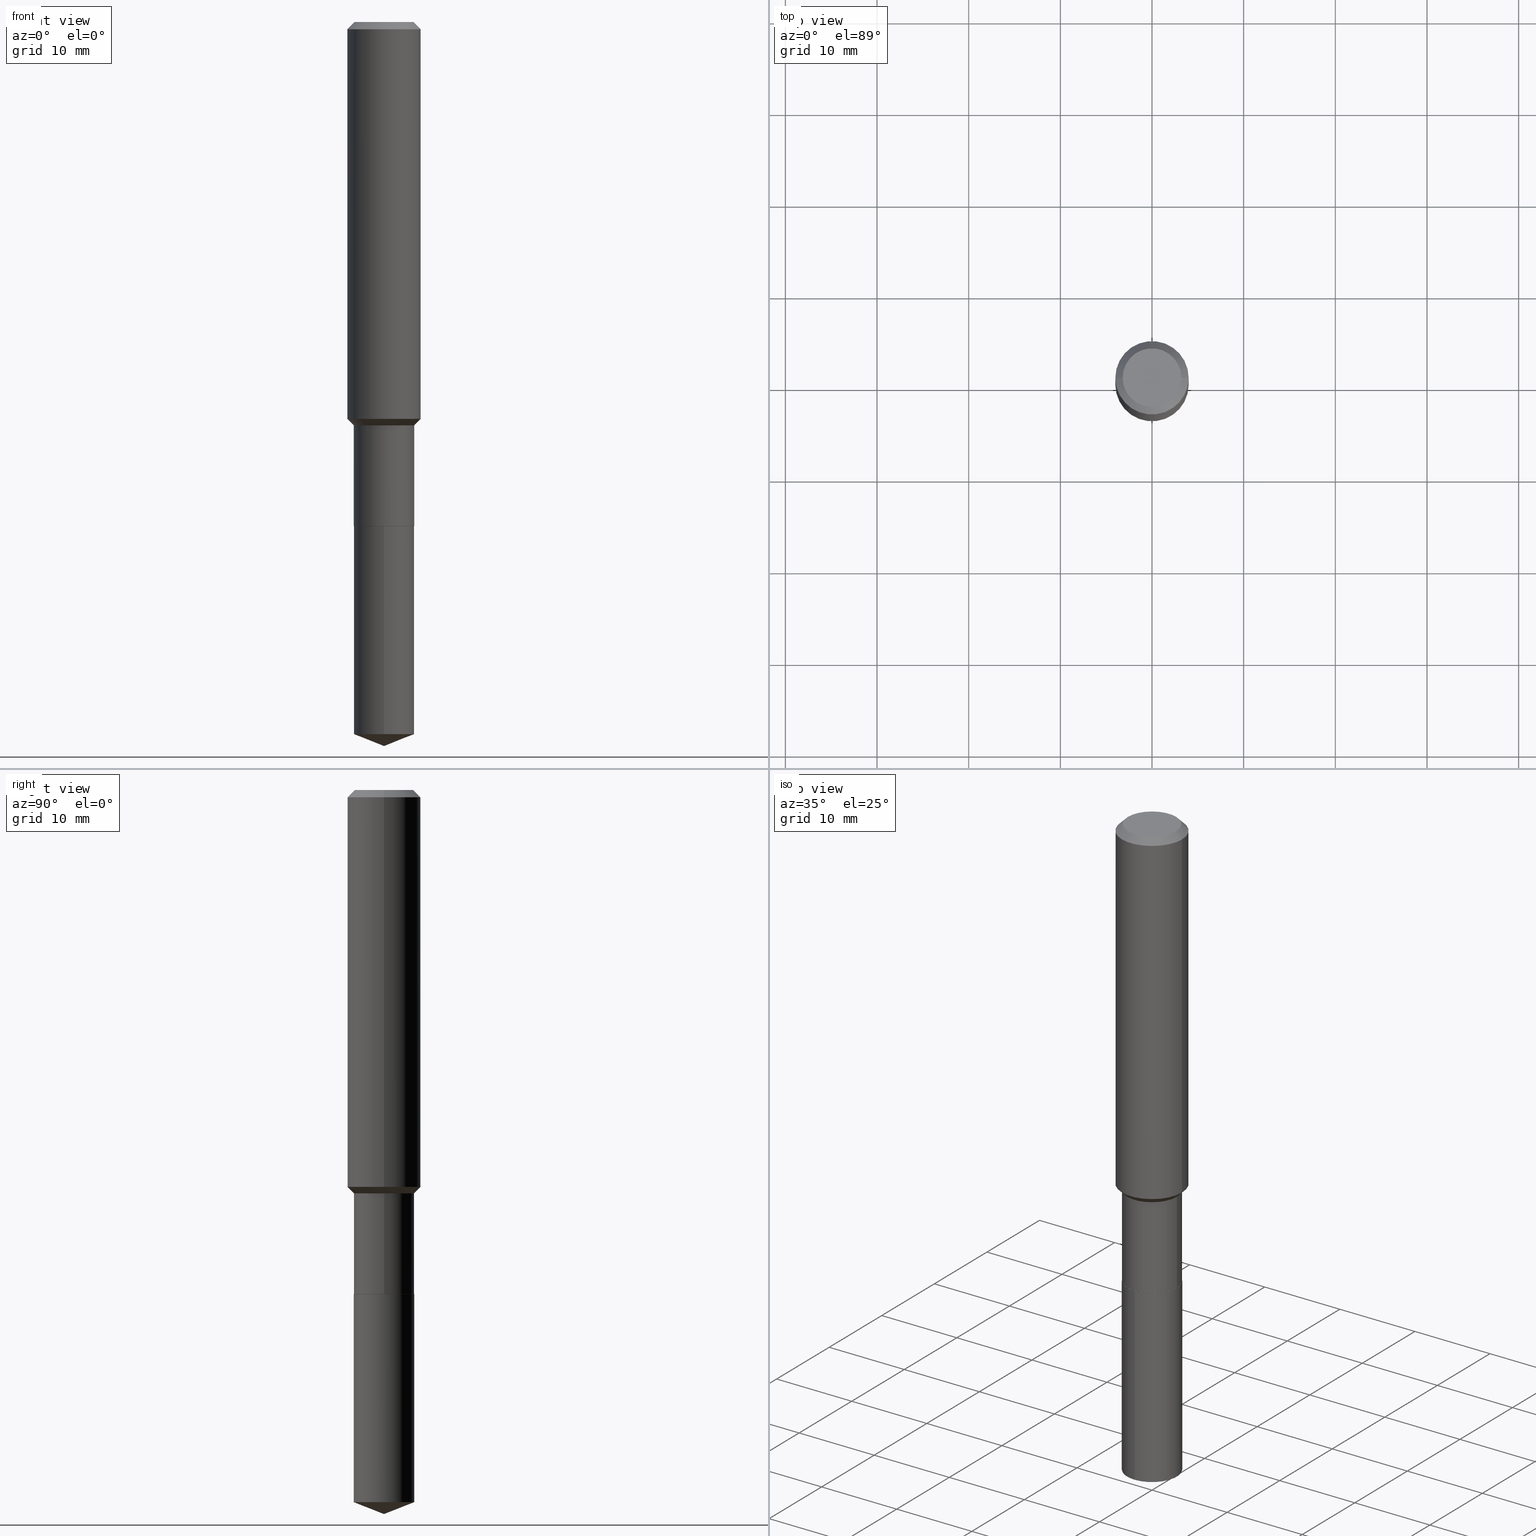
[diagram: canonical four-view strip — front | top / right | iso, engineering-drawing reading convention]
A machine part, canonical four-view strip (front | top / right | iso — engineering-drawing reading convention). The complete STEP part file that produces these views, byte-faithful:
ISO-10303-21;
HEADER;
FILE_DESCRIPTION (( 'STEP AP203' ),
    '1' );
FILE_NAME ('66436.STEP',
    '2024-04-24T22:44:05',
    ( '' ),
    ( '' ),
    'SwSTEP 2.0',
    'SolidWorks 2023',
    '' );
FILE_SCHEMA (( 'CONFIG_CONTROL_DESIGN' ));
ENDSEC;

DATA;
#1 = EDGE_CURVE ( 'NONE', #54, #28, #373, .T. ) ;
#2 = CARTESIAN_POINT ( 'NONE',  ( -8.866673825358101725E-28, 1.266088013143874858E-13, 36.25987874015748247 ) ) ;
#3 = AXIS2_PLACEMENT_3D ( 'NONE', #337, #137, #283 ) ;
#4 = ORIENTED_EDGE ( 'NONE', *, *, #140, .T. ) ;
#5 = CC_DESIGN_PERSON_AND_ORGANIZATION_ASSIGNMENT ( #316, #204, ( #434 ) ) ;
#6 = CARTESIAN_POINT ( 'NONE',  ( -0.1298999999999999322, -5.126345553927266096E-15, -1.732600000000000362 ) ) ;
#7 = DIRECTION ( 'NONE',  ( -2.445468806185136597E-29, 3.491481338843145583E-15, 1.000000000000000000 ) ) ;
#8 = CARTESIAN_POINT ( 'NONE',  ( -9.439721640706201686E-47, 1.347742071746726764E-32, 3.860086710912459732E-18 ) ) ;
#9 = PERSON_AND_ORGANIZATION ( #426, #233 ) ;
#10 = AXIS2_PLACEMENT_3D ( 'NONE', #399, #145, #218 ) ;
#11 = AXIS2_PLACEMENT_3D ( 'NONE', #333, #149, #438 ) ;
#12 = PERSON_AND_ORGANIZATION_ROLE ( 'design_supplier' ) ;
#13 = LOCAL_TIME ( 18, 44, 5.000000000000000000, #205 ) ;
#14 = PRODUCT_DEFINITION ( 'UNKNOWN', '', #86, #200 ) ;
#15 = SECURITY_CLASSIFICATION_LEVEL ( 'unclassified' ) ;
#16 = DIRECTION ( 'NONE',  ( -2.445321399674212677E-29, 3.491692433356646244E-15, 1.000000000000000000 ) ) ;
#17 = ORIENTED_EDGE ( 'NONE', *, *, #202, .T. ) ;
#18 = VECTOR ( 'NONE', #334, 39.37007874015748143 ) ;
#19 = EDGE_CURVE ( 'NONE', #68, #51, #183, .T. ) ;
#20 = DATE_AND_TIME ( #387, #291 ) ;
#21 = ORIENTED_EDGE ( 'NONE', *, *, #314, .F. ) ;
#22 = DIRECTION ( 'NONE',  ( -2.445468806185136597E-29, 3.491481338843145583E-15, 1.000000000000000000 ) ) ;
#23 = DIRECTION ( 'NONE',  ( 1.000000000000000000, -6.982962677686267499E-15, 4.876176775795936353E-29 ) ) ;
#24 = EDGE_LOOP ( 'NONE', ( #211, #397 ) ) ;
#25 = CC_DESIGN_DATE_AND_TIME_ASSIGNMENT ( #207, #128, ( #143 ) ) ;
#26 = ORIENTED_EDGE ( 'NONE', *, *, #265, .T. ) ;
#27 = VECTOR ( 'NONE', #203, 39.37007874015748143 ) ;
#28 = VERTEX_POINT ( 'NONE', #327 ) ;
#29 = CARTESIAN_POINT ( 'NONE',  ( 7.605438617266735127E-29, -1.085986180622584034E-14, -3.110199999999999854 ) ) ;
#30 = ORIENTED_EDGE ( 'NONE', *, *, #473, .T. ) ;
#31 = FACE_OUTER_BOUND ( 'NONE', #135, .T. ) ;
#32 = ORIENTED_EDGE ( 'NONE', *, *, #414, .F. ) ;
#33 = DIRECTION ( 'NONE',  ( -2.445321399674212677E-29, 3.491692433356646244E-15, 1.000000000000000000 ) ) ;
#34 = DIRECTION ( 'NONE',  ( 1.000000000000000000, -6.982962677686265922E-15, 4.876176775795935793E-29 ) ) ;
#35 = ORIENTED_EDGE ( 'NONE', *, *, #19, .F. ) ;
#36 = CC_DESIGN_PERSON_AND_ORGANIZATION_ASSIGNMENT ( #89, #470, ( #14 ) ) ;
#37 = VECTOR ( 'NONE', #38, 39.37007874015748143 ) ;
#38 = DIRECTION ( 'NONE',  ( -0.7071067811866199593, 7.493145998870616062E-15, 0.7071067811864750752 ) ) ;
#39 = DIRECTION ( 'NONE',  ( -2.445468806185136597E-29, 3.491481338843145583E-15, 1.000000000000000000 ) ) ;
#40 = EDGE_CURVE ( 'NONE', #138, #363, #482, .T. ) ;
#41 = FACE_OUTER_BOUND ( 'NONE', #93, .T. ) ;
#42 = DIRECTION ( 'NONE',  ( 2.445321399674212117E-29, -3.491692433356646639E-15, -1.000000000000000000 ) ) ;
#43 = DIRECTION ( 'NONE',  ( -1.000000000000000000, 6.982962677686265922E-15, -4.876176775795935793E-29 ) ) ;
#44 = CIRCLE ( 'NONE', #157, 0.1260000000000000009 ) ;
#45 = CARTESIAN_POINT ( 'NONE',  ( 0.1298999999999999877, -8.465445654159088005E-15, -2.164800000000000058 ) ) ;
#46 = LINE ( 'NONE', #305, #141 ) ;
#47 = PERSON_AND_ORGANIZATION ( #426, #233 ) ;
#48 = EDGE_CURVE ( 'NONE', #54, #68, #84, .T. ) ;
#49 = AXIS2_PLACEMENT_3D ( 'NONE', #377, #217, #34 ) ;
#50 = PERSON_AND_ORGANIZATION ( #426, #233 ) ;
#51 = VERTEX_POINT ( 'NONE', #263 ) ;
#52 = ORIENTED_EDGE ( 'NONE', *, *, #376, .F. ) ;
#53 = CARTESIAN_POINT ( 'NONE',  ( -4.719860820353100843E-47, 6.738710358733633822E-33, 1.930043355456229866E-18 ) ) ;
#54 = VERTEX_POINT ( 'NONE', #139 ) ;
#55 = EDGE_CURVE ( 'NONE', #68, #54, #439, .T. ) ;
#56 = DIMENSIONAL_EXPONENTS ( 1.000000000000000000, 0.000000000000000000, 0.000000000000000000, 0.000000000000000000, 0.000000000000000000, 0.000000000000000000, 0.000000000000000000 ) ;
#57 = ORIENTED_EDGE ( 'NONE', *, *, #453, .T. ) ;
#58 = SHAPE_DEFINITION_REPRESENTATION ( #323, #331 ) ;
#59 = VECTOR ( 'NONE', #184, 39.37007874015748143 ) ;
#60 = PLANE ( 'NONE',  #49 ) ;
#61 = LINE ( 'NONE', #411, #287 ) ;
#62 = ORIENTED_EDGE ( 'NONE', *, *, #376, .T. ) ;
#63 = CARTESIAN_POINT ( 'NONE',  ( 5.295173606032675561E-29, -7.560104542997063911E-15, -2.165299999999999780 ) ) ;
#64 = EDGE_LOOP ( 'NONE', ( #178, #173, #345 ) ) ;
#65 = DIRECTION ( 'NONE',  ( -1.000000000000000000, 6.982962677686265922E-15, 0.000000000000000000 ) ) ;
#66 = DIRECTION ( 'NONE',  ( -6.982962677686266711E-15, -1.000000000000000000, 4.206078512185163024E-15 ) ) ;
#67 = DIRECTION ( 'NONE',  ( 1.000000000000000000, -6.982962677686265922E-15, 0.000000000000000000 ) ) ;
#68 = VERTEX_POINT ( 'NONE', #256 ) ;
#69 = DIRECTION ( 'NONE',  ( -6.982962677686266711E-15, -1.000000000000000000, 4.206078512185163024E-15 ) ) ;
#70 = AXIS2_PLACEMENT_3D ( 'NONE', #119, #7, #462 ) ;
#71 = ORIENTED_EDGE ( 'NONE', *, *, #265, .F. ) ;
#72 = CARTESIAN_POINT ( 'NONE',  ( -0.1575000000000000011, -1.912373863628402067E-15, -0.03150000000000019451 ) ) ;
#73 = DIRECTION ( 'NONE',  ( 1.000000000000000000, -6.982962677686263555E-15, 0.000000000000000000 ) ) ;
#74 = DIRECTION ( 'NONE',  ( 0.7071067811865472397, -2.468850131082253905E-15, 0.7071067811865477948 ) ) ;
#75 = VERTEX_POINT ( 'NONE', #296 ) ;
#76 = EDGE_CURVE ( 'NONE', #431, #68, #61, .T. ) ;
#77 = CIRCLE ( 'NONE', #351, 0.1298999999999999322 ) ;
#78 = AXIS2_PLACEMENT_3D ( 'NONE', #100, #253, #114 ) ;
#79 = DIRECTION ( 'NONE',  ( -2.445468806185136597E-29, 3.491481338843145583E-15, 1.000000000000000000 ) ) ;
#80 = CARTESIAN_POINT ( 'NONE',  ( -0.1260000000000000009, 9.348441284752484904E-16, 3.860086710906114178E-18 ) ) ;
#81 = CARTESIAN_POINT ( 'NONE',  ( -9.439721640706201686E-47, 1.347742071746726764E-32, 3.860086710912459732E-18 ) ) ;
#82 = EDGE_LOOP ( 'NONE', ( #359, #317, #310, #239 ) ) ;
#83 = CARTESIAN_POINT ( 'NONE',  ( 0.1298999999999999599, -9.070868518314457948E-16, 6.334153631758918028E-30 ) ) ;
#84 = CIRCLE ( 'NONE', #223, 0.1298999999999999877 ) ;
#85 = AXIS2_PLACEMENT_3D ( 'NONE', #448, #33, #455 ) ;
#86 = PRODUCT_DEFINITION_FORMATION_WITH_SPECIFIED_SOURCE ( 'ANY', '', #434, .NOT_KNOWN. ) ;
#87 = CALENDAR_DATE ( 2024, 24, 4 ) ;
#88 = ADVANCED_FACE ( 'NONE', ( #450 ), #447, .T. ) ;
#89 = PERSON_AND_ORGANIZATION ( #426, #233 ) ;
#90 = CALENDAR_DATE ( 2024, 24, 4 ) ;
#91 = CIRCLE ( 'NONE', #440, 0.1298999999999999877 ) ;
#92 = ADVANCED_FACE ( 'NONE', ( #101 ), #254, .T. ) ;
#93 = EDGE_LOOP ( 'NONE', ( #124, #158, #17, #487 ) ) ;
#94 = DATE_TIME_ROLE ( 'creation_date' ) ;
#95 = DIRECTION ( 'NONE',  ( 0.7071067811866199593, -2.468850131083015945E-15, 0.7071067811864750752 ) ) ;
#96 = CARTESIAN_POINT ( 'NONE',  ( 4.237019253596368185E-29, -6.049340567679635558E-15, -1.732600000000000362 ) ) ;
#97 = ORIENTED_EDGE ( 'NONE', *, *, #314, .T. ) ;
#98 = EDGE_LOOP ( 'NONE', ( #479, #30, #249 ) ) ;
#99 = CONICAL_SURFACE ( 'NONE', #370, 99.94676754584030220, 1.195550537616120623 ) ;
#100 = CARTESIAN_POINT ( 'NONE',  ( 5.295173606032675561E-29, -7.560104542997063911E-15, -2.165299999999999780 ) ) ;
#101 = FACE_OUTER_BOUND ( 'NONE', #469, .T. ) ;
#102 = EDGE_CURVE ( 'NONE', #394, #138, #339, .T. ) ;
#103 = CARTESIAN_POINT ( 'NONE',  ( -0.1575000000000000844, 1.119104808822158392E-15, -7.747322767151481189E-30 ) ) ;
#104 = ORIENTED_EDGE ( 'NONE', *, *, #336, .T. ) ;
#105 = VERTEX_POINT ( 'NONE', #401 ) ;
#106 = CARTESIAN_POINT ( 'NONE',  ( -0.1298999999999999877, -5.880854671251267548E-15, -2.164800000000000058 ) ) ;
#107 = CARTESIAN_POINT ( 'NONE',  ( 4.237019253596368185E-29, -6.049340567679635558E-15, -1.732600000000000362 ) ) ;
#108 = DIRECTION ( 'NONE',  ( 1.000000000000000000, -6.982962677686265133E-15, 0.000000000000000000 ) ) ;
#109 = AXIS2_PLACEMENT_3D ( 'NONE', #197, #161, #344 ) ;
#110 = CARTESIAN_POINT ( 'NONE',  ( 0.000000000000000000, 0.000000000000000000, 0.000000000000000000 ) ) ;
#111 = EDGE_CURVE ( 'NONE', #167, #278, #77, .T. ) ;
#112 = EDGE_LOOP ( 'NONE', ( #285, #132, #338, #177 ) ) ;
#113 = EDGE_CURVE ( 'NONE', #368, #167, #46, .T. ) ;
#114 = DIRECTION ( 'NONE',  ( 1.000000000000000000, -6.982962677686265133E-15, 0.000000000000000000 ) ) ;
#115 = DIRECTION ( 'NONE',  ( 6.982962677686265922E-15, 1.000000000000000000, -3.491692433356646639E-15 ) ) ;
#116 = CONICAL_SURFACE ( 'NONE', #109, 0.1293999999999999873, 0.7853981633975507526 ) ;
#117 = DIRECTION ( 'NONE',  ( -2.445468806185136877E-29, 3.491481338843145188E-15, 1.000000000000000000 ) ) ;
#118 = CARTESIAN_POINT ( 'NONE',  ( 5.295173606032675561E-29, -7.560104542997063911E-15, -2.165299999999999780 ) ) ;
#119 = CARTESIAN_POINT ( 'NONE',  ( 7.703226739483228723E-31, -1.099816621735597661E-16, -0.03150000000000019451 ) ) ;
#120 = DIRECTION ( 'NONE',  ( -2.445468806185136597E-29, 3.491481338843145583E-15, 1.000000000000000000 ) ) ;
#121 = CYLINDRICAL_SURFACE ( 'NONE', #133, 0.1298999999999999877 ) ;
#122 = UNCERTAINTY_MEASURE_WITH_UNIT (LENGTH_MEASURE( 1.000000000000000082E-05 ), #136, 'distance_accuracy_value', 'NONE');
#123 = CARTESIAN_POINT ( 'NONE',  ( 7.703226739483228723E-31, -1.099816621735597661E-16, -0.03150000000000019451 ) ) ;
#124 = ORIENTED_EDGE ( 'NONE', *, *, #398, .F. ) ;
#125 = APPLICATION_CONTEXT ( 'configuration controlled 3d designs of mechanical parts and assemblies' ) ;
#126 = AXIS2_PLACEMENT_3D ( 'NONE', #110, #378, #23 ) ;
#127 = AXIS2_PLACEMENT_3D ( 'NONE', #297, #271, #384 ) ;
#128 = DATE_TIME_ROLE ( 'classification_date' ) ;
#129 = PERSON_AND_ORGANIZATION ( #426, #233 ) ;
#130 = ADVANCED_FACE ( 'NONE', ( #458 ), #121, .T. ) ;
#131 = APPROVAL_STATUS ( 'not_yet_approved' ) ;
#132 = ORIENTED_EDGE ( 'NONE', *, *, #398, .T. ) ;
#133 = AXIS2_PLACEMENT_3D ( 'NONE', #292, #179, #69 ) ;
#134 = APPROVAL_ROLE ( '' ) ;
#135 = EDGE_LOOP ( 'NONE', ( #35, #302, #332, #160 ) ) ;
#136 =( CONVERSION_BASED_UNIT ( 'INCH', #169 ) LENGTH_UNIT ( ) NAMED_UNIT ( #56 ) );
#137 = DIRECTION ( 'NONE',  ( -2.445468806185136597E-29, 3.491481338843145583E-15, 1.000000000000000000 ) ) ;
#138 = VERTEX_POINT ( 'NONE', #298 ) ;
#139 = CARTESIAN_POINT ( 'NONE',  ( -9.070868518313710503E-16, -0.1299000000000106736, -3.059031029217619047 ) ) ;
#140 = EDGE_CURVE ( 'NONE', #138, #394, #389, .T. ) ;
#141 = VECTOR ( 'NONE', #117, 39.37007874015748143 ) ;
#142 = AXIS2_PLACEMENT_3D ( 'NONE', #250, #415, #226 ) ;
#143 = SECURITY_CLASSIFICATION ( '', '', #15 ) ;
#144 = DIRECTION ( 'NONE',  ( -2.445468806185136597E-29, 3.491481338843145583E-15, 1.000000000000000000 ) ) ;
#145 = DIRECTION ( 'NONE',  ( -2.445468806185136597E-29, 3.491481338843145583E-15, 1.000000000000000000 ) ) ;
#146 = DIRECTION ( 'NONE',  ( -6.982962677686266711E-15, -1.000000000000000000, 4.206078512185163024E-15 ) ) ;
#147 = DIRECTION ( 'NONE',  ( -2.445321399674212677E-29, 3.491692433356646244E-15, 1.000000000000000000 ) ) ;
#148 = ADVANCED_FACE ( 'NONE', ( #410 ), #361, .T. ) ;
#149 = DIRECTION ( 'NONE',  ( -2.445321399674212677E-29, 3.491692433356646244E-15, 1.000000000000000000 ) ) ;
#150 = CARTESIAN_POINT ( 'NONE',  ( 7.480633217331380672E-29, -1.068073841517227497E-14, -3.059031029217619935 ) ) ;
#151 = APPROVAL_PERSON_ORGANIZATION ( #352, #428, #409 ) ;
#152 = EDGE_LOOP ( 'NONE', ( #471, #4, #390, #264 ) ) ;
#153 = DIRECTION ( 'NONE',  ( -2.445468806185136597E-29, 3.491481338843145583E-15, 1.000000000000000000 ) ) ;
#154 = DIRECTION ( 'NONE',  ( -6.982962677686266711E-15, -1.000000000000000000, 3.498627837349992784E-15 ) ) ;
#155 = CARTESIAN_POINT ( 'NONE',  ( 0.1575000000000001954, -7.052792304463151308E-15, -1.705000000000000071 ) ) ;
#156 = VECTOR ( 'NONE', #445, 39.37007874015748143 ) ;
#157 = AXIS2_PLACEMENT_3D ( 'NONE', #8, #347, #269 ) ;
#158 = ORIENTED_EDGE ( 'NONE', *, *, #111, .T. ) ;
#159 = DIRECTION ( 'NONE',  ( 1.000000000000000000, -6.982962677686268288E-15, 0.000000000000000000 ) ) ;
#160 = ORIENTED_EDGE ( 'NONE', *, *, #480, .F. ) ;
#161 = DIRECTION ( 'NONE',  ( -2.445468806185136597E-29, 3.491481338843145583E-15, 1.000000000000000000 ) ) ;
#162 = ADVANCED_FACE ( 'NONE', ( #444 ), #451, .T. ) ;
#163 = VECTOR ( 'NONE', #225, 39.37007874015748143 ) ;
#164 = VECTOR ( 'NONE', #74, 39.37007874015748143 ) ;
#165 = ADVANCED_FACE ( 'NONE', ( #403 ), #465, .T. ) ;
#166 = DIRECTION ( 'NONE',  ( 1.000000000000000000, 0.000000000000000000, 0.000000000000000000 ) ) ;
#167 = VERTEX_POINT ( 'NONE', #262 ) ;
#168 = EDGE_LOOP ( 'NONE', ( #62, #201, #290, #308 ) ) ;
#169 = LENGTH_MEASURE_WITH_UNIT ( LENGTH_MEASURE( 0.02539999999999999897 ), #240 );
#170 = EDGE_LOOP ( 'NONE', ( #443, #422, #436, #419 ) ) ;
#171 = VECTOR ( 'NONE', #460, 39.37007874015748143 ) ;
#172 = PERSON_AND_ORGANIZATION_ROLE ( 'classification_officer' ) ;
#173 = ORIENTED_EDGE ( 'NONE', *, *, #76, .T. ) ;
#174 = COORDINATED_UNIVERSAL_TIME_OFFSET ( 5, 0, .BEHIND. ) ;
#175 = DIRECTION ( 'NONE',  ( 1.000000000000000000, -6.982962677686263555E-15, 0.000000000000000000 ) ) ;
#176 = EDGE_CURVE ( 'NONE', #402, #75, #372, .T. ) ;
#177 = ORIENTED_EDGE ( 'NONE', *, *, #202, .F. ) ;
#178 = ORIENTED_EDGE ( 'NONE', *, *, #473, .F. ) ;
#179 = DIRECTION ( 'NONE',  ( -2.445321399674212677E-29, 3.491692433356646244E-15, 1.000000000000000000 ) ) ;
#180 = CARTESIAN_POINT ( 'NONE',  ( 9.229950137524229077E-16, 0.1298999999999924382, -2.165300000000000669 ) ) ;
#181 = CIRCLE ( 'NONE', #346, 0.1293999999999999873 ) ;
#182 = CARTESIAN_POINT ( 'NONE',  ( 0.1575000000000000011, -1.190510096822576026E-15, -0.03150000000000019451 ) ) ;
#183 = LINE ( 'NONE', #180, #18 ) ;
#184 = DIRECTION ( 'NONE',  ( -6.497071151882122203E-15, -0.9304175679820250178, 0.3665012267242960253 ) ) ;
#185 = ADVANCED_FACE ( 'NONE', ( #31 ), #486, .T. ) ;
#186 = ORIENTED_EDGE ( 'NONE', *, *, #453, .F. ) ;
#187 = CARTESIAN_POINT ( 'NONE',  ( -9.070868518313931384E-16, -0.1299000000000075650, -2.165299999999999336 ) ) ;
#188 = PLANE ( 'NONE',  #423 ) ;
#189 = LINE ( 'NONE', #412, #37 ) ;
#190 = FACE_OUTER_BOUND ( 'NONE', #112, .T. ) ;
#191 = CARTESIAN_POINT ( 'NONE',  ( 0.000000000000000000, 0.000000000000000000, 0.000000000000000000 ) ) ;
#192 = AXIS2_PLACEMENT_3D ( 'NONE', #326, #214, #477 ) ;
#193 = DIRECTION ( 'NONE',  ( 1.000000000000000000, -6.982962677686265922E-15, 4.876281427513067258E-29 ) ) ;
#194 = LINE ( 'NONE', #29, #59 ) ;
#195 = DIRECTION ( 'NONE',  ( 1.000000000000000000, -6.982962677686263555E-15, 0.000000000000000000 ) ) ;
#196 = ORIENTED_EDGE ( 'NONE', *, *, #102, .T. ) ;
#197 = CARTESIAN_POINT ( 'NONE',  ( 5.295173606032675561E-29, -7.560104542997063911E-15, -2.165299999999999780 ) ) ;
#198 = VECTOR ( 'NONE', #273, 39.37007874015748143 ) ;
#199 = LOCAL_TIME ( 18, 44, 5.000000000000000000, #357 ) ;
#200 = DESIGN_CONTEXT ( 'detailed design', #247, 'design' ) ;
#201 = ORIENTED_EDGE ( 'NONE', *, *, #113, .T. ) ;
#202 = EDGE_CURVE ( 'NONE', #278, #394, #248, .T. ) ;
#203 = DIRECTION ( 'NONE',  ( -2.445468806185136877E-29, 3.491481338843145188E-15, 1.000000000000000000 ) ) ;
#204 = PERSON_AND_ORGANIZATION_ROLE ( 'design_owner' ) ;
#205 = COORDINATED_UNIVERSAL_TIME_OFFSET ( 5, 0, .BEHIND. ) ;
#206 = CONICAL_SURFACE ( 'NONE', #85, 99.94676754584030220, 1.195550537616120623 ) ;
#207 = DATE_AND_TIME ( #87, #261 ) ;
#208 = ORIENTED_EDGE ( 'NONE', *, *, #480, .T. ) ;
#209 = DIRECTION ( 'NONE',  ( 2.438088387897960049E-29, -3.491481338843145188E-15, -1.000000000000000000 ) ) ;
#210 = DIRECTION ( 'NONE',  ( 0.000000000000000000, 0.000000000000000000, 1.000000000000000000 ) ) ;
#211 = ORIENTED_EDGE ( 'NONE', *, *, #392, .T. ) ;
#212 = AXIS2_PLACEMENT_3D ( 'NONE', #222, #120, #369 ) ;
#213 = ADVANCED_FACE ( 'NONE', ( #229 ), #60, .F. ) ;
#214 = DIRECTION ( 'NONE',  ( -2.445468806185136597E-29, 3.491481338843145583E-15, 1.000000000000000000 ) ) ;
#215 = DIRECTION ( 'NONE',  ( -2.445468806185136597E-29, 3.491481338843145583E-15, 1.000000000000000000 ) ) ;
#216 = ORIENTED_EDGE ( 'NONE', *, *, #40, .T. ) ;
#217 = DIRECTION ( 'NONE',  ( -2.438088387897960049E-29, 3.491481338843145188E-15, 1.000000000000000000 ) ) ;
#218 = DIRECTION ( 'NONE',  ( 1.000000000000000000, -6.982962677686265922E-15, 0.000000000000000000 ) ) ;
#219 = DIRECTION ( 'NONE',  ( -2.445468806185136597E-29, 3.491481338843145583E-15, 1.000000000000000000 ) ) ;
#220 = CARTESIAN_POINT ( 'NONE',  ( 4.237019253596368185E-29, -6.049340567679635558E-15, -1.732600000000000362 ) ) ;
#221 = ADVANCED_FACE ( 'NONE', ( #190 ), #396, .T. ) ;
#222 = CARTESIAN_POINT ( 'NONE',  ( 0.000000000000000000, 0.000000000000000000, 0.000000000000000000 ) ) ;
#223 = AXIS2_PLACEMENT_3D ( 'NONE', #150, #488, #146 ) ;
#224 = DIRECTION ( 'NONE',  ( 1.000000000000000000, -6.982962677686266711E-15, 4.876176775795935232E-29 ) ) ;
#225 = DIRECTION ( 'NONE',  ( -2.445468806185136877E-29, 3.491481338843145188E-15, 1.000000000000000000 ) ) ;
#226 = DIRECTION ( 'NONE',  ( -6.982962677686266711E-15, -1.000000000000000000, 4.206078512185163024E-15 ) ) ;
#227 = DIRECTION ( 'NONE',  ( 1.000000000000000000, -6.982962677686268288E-15, 0.000000000000000000 ) ) ;
#228 = APPROVAL_STATUS ( 'not_yet_approved' ) ;
#229 = FACE_OUTER_BOUND ( 'NONE', #366, .T. ) ;
#230 = DIRECTION ( 'NONE',  ( 6.611014441532069744E-15, 0.9304175679820275713, 0.3665012267242894195 ) ) ;
#231 = EDGE_CURVE ( 'NONE', #278, #167, #312, .T. ) ;
#232 = CONICAL_SURFACE ( 'NONE', #244, 0.1298999999999999322, 0.7853981633974479459 ) ;
#233 = ORGANIZATION ( 'UNSPECIFIED', 'UNSPECIFIED', '' ) ;
#234 = LINE ( 'NONE', #381, #171 ) ;
#235 = CARTESIAN_POINT ( 'NONE',  ( 5.293950871629583880E-29, -7.558358802327641618E-15, -2.164800000000000058 ) ) ;
#236 = APPROVAL ( #466, 'UNSPECIFIED' ) ;
#237 = DIRECTION ( 'NONE',  ( -2.445468806185136597E-29, 3.491481338843145583E-15, 1.000000000000000000 ) ) ;
#238 = VECTOR ( 'NONE', #286, 39.37007874015748143 ) ;
#239 = ORIENTED_EDGE ( 'NONE', *, *, #111, .F. ) ;
#240 =( LENGTH_UNIT ( ) NAMED_UNIT ( * ) SI_UNIT ( $, .METRE. ) );
#241 = PERSON_AND_ORGANIZATION ( #426, #233 ) ;
#242 = COORDINATED_UNIVERSAL_TIME_OFFSET ( 5, 0, .BEHIND. ) ;
#243 = EDGE_LOOP ( 'NONE', ( #26, #272, #52, #322 ) ) ;
#244 = AXIS2_PLACEMENT_3D ( 'NONE', #107, #259, #73 ) ;
#245 = CARTESIAN_POINT ( 'NONE',  ( 0.000000000000000000, 0.000000000000000000, 0.000000000000000000 ) ) ;
#246 = EDGE_CURVE ( 'NONE', #394, #75, #324, .T. ) ;
#247 = APPLICATION_CONTEXT ( 'configuration controlled 3d designs of mechanical parts and assemblies' ) ;
#248 = LINE ( 'NONE', #449, #164 ) ;
#249 = ORIENTED_EDGE ( 'NONE', *, *, #55, .F. ) ;
#250 = CARTESIAN_POINT ( 'NONE',  ( 5.295173606032675561E-29, -7.560104542997063911E-15, -2.165299999999999780 ) ) ;
#251 = AXIS2_PLACEMENT_3D ( 'NONE', #295, #144, #224 ) ;
#252 = CALENDAR_DATE ( 2024, 24, 4 ) ;
#253 = DIRECTION ( 'NONE',  ( -2.445468806185136597E-29, 3.491481338843145583E-15, 1.000000000000000000 ) ) ;
#254 = CYLINDRICAL_SURFACE ( 'NONE', #126, 0.1575000000000000844 ) ;
#255 = PRODUCT_RELATED_PRODUCT_CATEGORY ( 'detail', '', ( #434 ) ) ;
#256 = CARTESIAN_POINT ( 'NONE',  ( 9.229950137524447986E-16, 0.1298999999999893296, -3.059031029217620379 ) ) ;
#257 = ORIENTED_EDGE ( 'NONE', *, *, #176, .T. ) ;
#258 = FACE_OUTER_BOUND ( 'NONE', #476, .T. ) ;
#259 = DIRECTION ( 'NONE',  ( -2.445468806185136597E-29, 3.491481338843145583E-15, 1.000000000000000000 ) ) ;
#260 = CIRCLE ( 'NONE', #142, 0.1298999999999999877 ) ;
#261 = LOCAL_TIME ( 18, 44, 5.000000000000000000, #242 ) ;
#262 = CARTESIAN_POINT ( 'NONE',  ( -0.1298999999999999322, -5.880854671251268337E-15, -1.732600000000000362 ) ) ;
#263 = CARTESIAN_POINT ( 'NONE',  ( 9.229950137524449958E-16, 0.1298999999999924382, -2.165300000000000669 ) ) ;
#264 = ORIENTED_EDGE ( 'NONE', *, *, #318, .F. ) ;
#265 = EDGE_CURVE ( 'NONE', #105, #349, #383, .T. ) ;
#266 = CIRCLE ( 'NONE', #391, 0.1260000000000000009 ) ;
#267 = FACE_OUTER_BOUND ( 'NONE', #243, .T. ) ;
#268 = CC_DESIGN_APPROVAL ( #428, ( #143 ) ) ;
#269 = DIRECTION ( 'NONE',  ( 1.000000000000000000, -6.982962677686265922E-15, 4.876281427513067258E-29 ) ) ;
#270 = EDGE_CURVE ( 'NONE', #368, #463, #91, .T. ) ;
#271 = DIRECTION ( 'NONE',  ( 2.445468806185136597E-29, -3.491481338843145583E-15, -1.000000000000000000 ) ) ;
#272 = ORIENTED_EDGE ( 'NONE', *, *, #275, .T. ) ;
#273 = DIRECTION ( 'NONE',  ( -0.7071067811865472397, 7.493145998870354160E-15, 0.7071067811865477948 ) ) ;
#274 = AXIS2_PLACEMENT_3D ( 'NONE', #191, #215, #362 ) ;
#275 = EDGE_CURVE ( 'NONE', #349, #368, #189, .T. ) ;
#276 = APPLICATION_PROTOCOL_DEFINITION ( 'international standard', 'config_control_design', 1994, #125 ) ;
#277 = APPROVAL_DATE_TIME ( #315, #236 ) ;
#278 = VERTEX_POINT ( 'NONE', #343 ) ;
#279 = DATE_AND_TIME ( #90, #13 ) ;
#280 = ADVANCED_FACE ( 'NONE', ( #416 ), #99, .T. ) ;
#281 = VERTEX_POINT ( 'NONE', #80 ) ;
#282 = CALENDAR_DATE ( 2024, 24, 4 ) ;
#283 = DIRECTION ( 'NONE',  ( 1.000000000000000000, -6.982962677686263555E-15, 0.000000000000000000 ) ) ;
#284 = ORIENTED_EDGE ( 'NONE', *, *, #392, .F. ) ;
#285 = ORIENTED_EDGE ( 'NONE', *, *, #231, .T. ) ;
#286 = DIRECTION ( 'NONE',  ( -2.445468806185136877E-29, 3.491481338843145188E-15, 1.000000000000000000 ) ) ;
#287 = VECTOR ( 'NONE', #230, 39.37007874015748854 ) ;
#288 = CIRCLE ( 'NONE', #353, 0.1575000000000000011 ) ;
#289 = CC_DESIGN_PERSON_AND_ORGANIZATION_ASSIGNMENT ( #47, #12, ( #86 ) ) ;
#290 = ORIENTED_EDGE ( 'NONE', *, *, #231, .F. ) ;
#291 = LOCAL_TIME ( 18, 44, 5.000000000000000000, #350 ) ;
#292 = CARTESIAN_POINT ( 'NONE',  ( 5.295173606032675561E-29, -7.560104542997063911E-15, -2.165299999999999780 ) ) ;
#293 = ORIENTED_EDGE ( 'NONE', *, *, #270, .F. ) ;
#294 = EDGE_LOOP ( 'NONE', ( #104, #208 ) ) ;
#295 = CARTESIAN_POINT ( 'NONE',  ( 0.000000000000000000, 0.000000000000000000, 0.000000000000000000 ) ) ;
#296 = CARTESIAN_POINT ( 'NONE',  ( 0.1575000000000000011, -1.209798283909146741E-15, -0.03150000000000019451 ) ) ;
#297 = CARTESIAN_POINT ( 'NONE',  ( 7.703226739483228723E-31, -1.099816621735597661E-16, -0.03150000000000019451 ) ) ;
#298 = CARTESIAN_POINT ( 'NONE',  ( -0.1575000000000001954, -4.833870873905404647E-15, -1.705000000000000071 ) ) ;
#299 = CARTESIAN_POINT ( 'NONE',  ( 7.480633217331380672E-29, -1.068073841517227497E-14, -3.059031029217619935 ) ) ;
#300 = AXIS2_PLACEMENT_3D ( 'NONE', #96, #22, #175 ) ;
#301 = AXIS2_PLACEMENT_3D ( 'NONE', #245, #210, #166 ) ;
#302 = ORIENTED_EDGE ( 'NONE', *, *, #55, .T. ) ;
#303 = ADVANCED_FACE ( 'NONE', ( #41 ), #232, .T. ) ;
#304 = LINE ( 'NONE', #83, #27 ) ;
#305 = CARTESIAN_POINT ( 'NONE',  ( -0.1298999999999999599, 9.229950137523698568E-16, -6.389696682241120408E-30 ) ) ;
#306 = ADVANCED_FACE ( 'NONE', ( #375 ), #188, .F. ) ;
#307 = AXIS2_PLACEMENT_3D ( 'NONE', #63, #219, #108 ) ;
#308 = ORIENTED_EDGE ( 'NONE', *, *, #355, .F. ) ;
#309 = CARTESIAN_POINT ( 'NONE',  ( 0.1260000000000000009, -1.027466422270894443E-15, 3.860086710919128072E-18 ) ) ;
#310 = ORIENTED_EDGE ( 'NONE', *, *, #355, .T. ) ;
#311 = CARTESIAN_POINT ( 'NONE',  ( 7.605438617266735127E-29, -1.085986180622584192E-14, -3.110199999999999854 ) ) ;
#312 = CIRCLE ( 'NONE', #300, 0.1298999999999999322 ) ;
#313 = CC_DESIGN_SECURITY_CLASSIFICATION ( #143, ( #86 ) ) ;
#314 = EDGE_CURVE ( 'NONE', #75, #363, #354, .T. ) ;
#315 = DATE_AND_TIME ( #282, #199 ) ;
#316 = PERSON_AND_ORGANIZATION ( #426, #233 ) ;
#317 = ORIENTED_EDGE ( 'NONE', *, *, #270, .T. ) ;
#318 = EDGE_CURVE ( 'NONE', #363, #75, #288, .T. ) ;
#319 = VECTOR ( 'NONE', #395, 39.37007874015748143 ) ;
#320 = APPROVAL_PERSON_ORGANIZATION ( #9, #467, #134 ) ;
#321 =( NAMED_UNIT ( * ) SI_UNIT ( $, .STERADIAN. ) SOLID_ANGLE_UNIT ( ) );
#322 = ORIENTED_EDGE ( 'NONE', *, *, #329, .F. ) ;
#323 = PRODUCT_DEFINITION_SHAPE ( 'NONE', 'NONE',  #14 ) ;
#324 = LINE ( 'NONE', #475, #238 ) ;
#325 = ORIENTED_EDGE ( 'NONE', *, *, #421, .T. ) ;
#326 = CARTESIAN_POINT ( 'NONE',  ( 4.169524314545657651E-29, -5.952975682727563039E-15, -1.705000000000000071 ) ) ;
#327 = CARTESIAN_POINT ( 'NONE',  ( -9.070868518313931384E-16, -0.1299000000000075650, -2.165299999999999336 ) ) ;
#328 = CIRCLE ( 'NONE', #478, 0.1298999999999999877 ) ;
#329 = EDGE_CURVE ( 'NONE', #105, #463, #356, .T. ) ;
#330 = EDGE_LOOP ( 'NONE', ( #32, #257, #97, #186 ) ) ;
#331 = ADVANCED_BREP_SHAPE_REPRESENTATION ( '66436', ( #335, #489, #301 ), #371 ) ;
#332 = ORIENTED_EDGE ( 'NONE', *, *, #1, .T. ) ;
#333 = CARTESIAN_POINT ( 'NONE',  ( 5.295173606032675561E-29, -7.560104542997063911E-15, -2.165299999999999780 ) ) ;
#334 = DIRECTION ( 'NONE',  ( -2.445321399674212397E-29, 3.491692433356646639E-15, 1.000000000000000000 ) ) ;
#335 = MANIFOLD_SOLID_BREP ( 'Body-Move/Copy2[1]', #379 ) ;
#336 = EDGE_CURVE ( 'NONE', #28, #51, #260, .T. ) ;
#337 = CARTESIAN_POINT ( 'NONE',  ( 4.237019253596368185E-29, -6.049340567679635558E-15, -1.732600000000000362 ) ) ;
#338 = ORIENTED_EDGE ( 'NONE', *, *, #102, .F. ) ;
#339 = CIRCLE ( 'NONE', #10, 0.1575000000000001954 ) ;
#340 = CONICAL_SURFACE ( 'NONE', #127, 0.1575000000000000011, 0.7853981633974449483 ) ;
#341 = FACE_OUTER_BOUND ( 'NONE', #152, .T. ) ;
#342 = ADVANCED_FACE ( 'NONE', ( #457 ), #382, .F. ) ;
#343 = CARTESIAN_POINT ( 'NONE',  ( 0.1298999999999999322, -6.956427419511080367E-15, -1.732600000000000362 ) ) ;
#344 = DIRECTION ( 'NONE',  ( 1.000000000000000000, -6.982962677686265133E-15, 0.000000000000000000 ) ) ;
#345 = ORIENTED_EDGE ( 'NONE', *, *, #48, .F. ) ;
#346 = AXIS2_PLACEMENT_3D ( 'NONE', #118, #237, #418 ) ;
#347 = DIRECTION ( 'NONE',  ( -2.445468806185136597E-29, 3.491481338843145583E-15, 1.000000000000000000 ) ) ;
#348 = CIRCLE ( 'NONE', #442, 0.1298999999999999877 ) ;
#349 = VERTEX_POINT ( 'NONE', #420 ) ;
#350 = COORDINATED_UNIVERSAL_TIME_OFFSET ( 5, 0, .BEHIND. ) ;
#351 = AXIS2_PLACEMENT_3D ( 'NONE', #220, #153, #195 ) ;
#352 = PERSON_AND_ORGANIZATION ( #426, #233 ) ;
#353 = AXIS2_PLACEMENT_3D ( 'NONE', #123, #367, #67 ) ;
#354 = CIRCLE ( 'NONE', #70, 0.1575000000000000011 ) ;
#355 = EDGE_CURVE ( 'NONE', #463, #278, #304, .T. ) ;
#356 = LINE ( 'NONE', #433, #407 ) ;
#357 = COORDINATED_UNIVERSAL_TIME_OFFSET ( 5, 0, .BEHIND. ) ;
#358 = AXIS2_PLACEMENT_3D ( 'NONE', #299, #452, #66 ) ;
#359 = ORIENTED_EDGE ( 'NONE', *, *, #113, .F. ) ;
#360 = CC_DESIGN_APPROVAL ( #467, ( #86 ) ) ;
#361 = CYLINDRICAL_SURFACE ( 'NONE', #251, 0.1298999999999999599 ) ;
#362 = DIRECTION ( 'NONE',  ( 1.000000000000000000, -6.982962677686266711E-15, 4.876176775795935232E-29 ) ) ;
#363 = VERTEX_POINT ( 'NONE', #72 ) ;
#364 = APPROVAL_DATE_TIME ( #485, #428 ) ;
#365 = ADVANCED_FACE ( 'NONE', ( #483 ), #206, .T. ) ;
#366 = EDGE_LOOP ( 'NONE', ( #71, #481 ) ) ;
#367 = DIRECTION ( 'NONE',  ( -2.445468806185136597E-29, 3.491481338843145583E-15, 1.000000000000000000 ) ) ;
#368 = VERTEX_POINT ( 'NONE', #106 ) ;
#369 = DIRECTION ( 'NONE',  ( 1.000000000000000000, -6.982962677686267499E-15, 4.876176775795936353E-29 ) ) ;
#370 = AXIS2_PLACEMENT_3D ( 'NONE', #2, #147, #154 ) ;
#371 =( GEOMETRIC_REPRESENTATION_CONTEXT ( 3 ) GLOBAL_UNCERTAINTY_ASSIGNED_CONTEXT ( ( #122 ) ) GLOBAL_UNIT_ASSIGNED_CONTEXT ( ( #136, #393, #321 ) ) REPRESENTATION_CONTEXT ( 'NONE', 'WORKASPACE' ) );
#372 = LINE ( 'NONE', #182, #319 ) ;
#373 = LINE ( 'NONE', #187, #156 ) ;
#374 = CARTESIAN_POINT ( 'NONE',  ( 5.295173606032675561E-29, -7.560104542997063911E-15, -2.165299999999999780 ) ) ;
#375 = FACE_OUTER_BOUND ( 'NONE', #24, .T. ) ;
#376 = EDGE_CURVE ( 'NONE', #463, #368, #328, .T. ) ;
#377 = CARTESIAN_POINT ( 'NONE',  ( 5.295173606032675561E-29, -7.560104542997063911E-15, -2.165299999999999780 ) ) ;
#378 = DIRECTION ( 'NONE',  ( -2.445468806185136597E-29, 3.491481338843145583E-15, 1.000000000000000000 ) ) ;
#379 = CLOSED_SHELL ( 'NONE', ( #130, #280, #365, #185, #342 ) ) ;
#380 = CC_DESIGN_PERSON_AND_ORGANIZATION_ASSIGNMENT ( #241, #388, ( #86 ) ) ;
#381 = CARTESIAN_POINT ( 'NONE',  ( -0.1575000000000000011, 9.898349595620272334E-16, -0.03150000000000019451 ) ) ;
#382 = PLANE ( 'NONE',  #413 ) ;
#383 = CIRCLE ( 'NONE', #78, 0.1293999999999999873 ) ;
#384 = DIRECTION ( 'NONE',  ( -1.000000000000000000, 6.982962677686265922E-15, 0.000000000000000000 ) ) ;
#385 = CC_DESIGN_APPROVAL ( #236, ( #14 ) ) ;
#386 = ADVANCED_FACE ( 'NONE', ( #267 ), #116, .T. ) ;
#387 = CALENDAR_DATE ( 2024, 24, 4 ) ;
#388 = PERSON_AND_ORGANIZATION_ROLE ( 'creator' ) ;
#389 = CIRCLE ( 'NONE', #192, 0.1575000000000001954 ) ;
#390 = ORIENTED_EDGE ( 'NONE', *, *, #246, .T. ) ;
#391 = AXIS2_PLACEMENT_3D ( 'NONE', #81, #39, #193 ) ;
#392 = EDGE_CURVE ( 'NONE', #281, #402, #44, .T. ) ;
#393 =( NAMED_UNIT ( * ) PLANE_ANGLE_UNIT ( ) SI_UNIT ( $, .RADIAN. ) );
#394 = VERTEX_POINT ( 'NONE', #155 ) ;
#395 = DIRECTION ( 'NONE',  ( 0.7071067811865451302, -7.319954787623248157E-15, -0.7071067811865499042 ) ) ;
#396 = CONICAL_SURFACE ( 'NONE', #3, 0.1298999999999999322, 0.7853981633974479459 ) ;
#397 = ORIENTED_EDGE ( 'NONE', *, *, #414, .T. ) ;
#398 = EDGE_CURVE ( 'NONE', #167, #138, #464, .T. ) ;
#399 = CARTESIAN_POINT ( 'NONE',  ( 4.169524314545657651E-29, -5.952975682727563039E-15, -1.705000000000000071 ) ) ;
#400 = DIRECTION ( 'NONE',  ( 2.445468806185136597E-29, -3.491481338843145583E-15, -1.000000000000000000 ) ) ;
#401 = CARTESIAN_POINT ( 'NONE',  ( 0.1293999999999999873, -8.463699913489665713E-15, -2.165299999999999780 ) ) ;
#402 = VERTEX_POINT ( 'NONE', #309 ) ;
#403 = FACE_OUTER_BOUND ( 'NONE', #484, .T. ) ;
#404 = ORIENTED_EDGE ( 'NONE', *, *, #246, .F. ) ;
#405 = CC_DESIGN_PERSON_AND_ORGANIZATION_ASSIGNMENT ( #129, #172, ( #143 ) ) ;
#406 = CARTESIAN_POINT ( 'NONE',  ( 5.295173606032675561E-29, -7.560104542997063911E-15, -2.165299999999999780 ) ) ;
#407 = VECTOR ( 'NONE', #95, 39.37007874015748143 ) ;
#408 = ORIENTED_EDGE ( 'NONE', *, *, #176, .F. ) ;
#409 = APPROVAL_ROLE ( '' ) ;
#410 = FACE_OUTER_BOUND ( 'NONE', #168, .T. ) ;
#411 = CARTESIAN_POINT ( 'NONE',  ( 7.606082573554659811E-29, -1.085894764032567561E-14, -3.110199999999999854 ) ) ;
#412 = CARTESIAN_POINT ( 'NONE',  ( -0.1293999999999999873, -6.640662242923493769E-15, -2.165299999999999780 ) ) ;
#413 = AXIS2_PLACEMENT_3D ( 'NONE', #374, #42, #115 ) ;
#414 = EDGE_CURVE ( 'NONE', #402, #281, #266, .T. ) ;
#415 = DIRECTION ( 'NONE',  ( -2.445321399674212677E-29, 3.491692433356646244E-15, 1.000000000000000000 ) ) ;
#416 = FACE_OUTER_BOUND ( 'NONE', #64, .T. ) ;
#417 = DIRECTION ( 'NONE',  ( -2.445468806185136597E-29, 3.491481338843145583E-15, 1.000000000000000000 ) ) ;
#418 = DIRECTION ( 'NONE',  ( 1.000000000000000000, -6.982962677686265133E-15, 0.000000000000000000 ) ) ;
#419 = ORIENTED_EDGE ( 'NONE', *, *, #1, .F. ) ;
#420 = CARTESIAN_POINT ( 'NONE',  ( -0.1293999999999999873, -6.638013015749382568E-15, -2.165299999999999780 ) ) ;
#421 = EDGE_CURVE ( 'NONE', #349, #105, #181, .T. ) ;
#422 = ORIENTED_EDGE ( 'NONE', *, *, #19, .T. ) ;
#423 = AXIS2_PLACEMENT_3D ( 'NONE', #53, #209, #43 ) ;
#424 = CYLINDRICAL_SURFACE ( 'NONE', #212, 0.1575000000000000844 ) ;
#425 = LOCAL_TIME ( 18, 44, 5.000000000000000000, #174 ) ;
#426 = PERSON ( 'UNSPECIFIED', 'UNSPECIFIED', 'UNSPECIFIED', ('UNSPECIFIED'), ('UNSPECIFIED'), ('UNSPECIFIED') ) ;
#427 = MECHANICAL_CONTEXT ( 'NONE', #125, 'mechanical' ) ;
#428 = APPROVAL ( #228, 'UNSPECIFIED' ) ;
#429 = CLOSED_SHELL ( 'NONE', ( #386, #162, #92, #221, #148, #88, #303, #437, #461, #306, #213, #165 ) ) ;
#430 = DIRECTION ( 'NONE',  ( -6.982962677686266711E-15, -1.000000000000000000, 4.206078512185163024E-15 ) ) ;
#431 = VERTEX_POINT ( 'NONE', #311 ) ;
#432 = APPROVAL_DATE_TIME ( #279, #467 ) ;
#433 = CARTESIAN_POINT ( 'NONE',  ( 0.1293999999999999873, -8.463699913489665713E-15, -2.165299999999999780 ) ) ;
#434 = PRODUCT ( '66436', '66436', '', ( #427 ) ) ;
#435 = CARTESIAN_POINT ( 'NONE',  ( 7.703226739483228723E-31, -1.099816621735597661E-16, -0.03150000000000019451 ) ) ;
#436 = ORIENTED_EDGE ( 'NONE', *, *, #336, .F. ) ;
#437 = ADVANCED_FACE ( 'NONE', ( #341 ), #424, .T. ) ;
#438 = DIRECTION ( 'NONE',  ( -6.982962677686266711E-15, -1.000000000000000000, 4.206078512185163024E-15 ) ) ;
#439 = CIRCLE ( 'NONE', #358, 0.1298999999999999877 ) ;
#440 = AXIS2_PLACEMENT_3D ( 'NONE', #454, #417, #227 ) ;
#441 = ORIENTED_EDGE ( 'NONE', *, *, #329, .T. ) ;
#442 = AXIS2_PLACEMENT_3D ( 'NONE', #406, #16, #430 ) ;
#443 = ORIENTED_EDGE ( 'NONE', *, *, #48, .T. ) ;
#444 = FACE_OUTER_BOUND ( 'NONE', #330, .T. ) ;
#445 = DIRECTION ( 'NONE',  ( -2.445321399674212397E-29, 3.491692433356646639E-15, 1.000000000000000000 ) ) ;
#446 = CC_DESIGN_DATE_AND_TIME_ASSIGNMENT ( #20, #94, ( #14 ) ) ;
#447 = CYLINDRICAL_SURFACE ( 'NONE', #274, 0.1298999999999999599 ) ;
#448 = CARTESIAN_POINT ( 'NONE',  ( -8.866673825358101725E-28, 1.266088013143874858E-13, 36.25987874015748247 ) ) ;
#449 = CARTESIAN_POINT ( 'NONE',  ( 0.1298999999999999322, -6.956427419511080367E-15, -1.732600000000000362 ) ) ;
#450 = FACE_OUTER_BOUND ( 'NONE', #82, .T. ) ;
#451 = CONICAL_SURFACE ( 'NONE', #456, 0.1575000000000000011, 0.7853981633974449483 ) ;
#452 = DIRECTION ( 'NONE',  ( -2.445321399674212677E-29, 3.491692433356646244E-15, 1.000000000000000000 ) ) ;
#453 = EDGE_CURVE ( 'NONE', #281, #363, #234, .T. ) ;
#454 = CARTESIAN_POINT ( 'NONE',  ( 5.293950871629583880E-29, -7.558358802327641618E-15, -2.164800000000000058 ) ) ;
#455 = DIRECTION ( 'NONE',  ( -6.982962677686266711E-15, -1.000000000000000000, 3.498627837349992784E-15 ) ) ;
#456 = AXIS2_PLACEMENT_3D ( 'NONE', #435, #400, #65 ) ;
#457 = FACE_OUTER_BOUND ( 'NONE', #294, .T. ) ;
#458 = FACE_OUTER_BOUND ( 'NONE', #170, .T. ) ;
#459 = ORIENTED_EDGE ( 'NONE', *, *, #275, .F. ) ;
#460 = DIRECTION ( 'NONE',  ( -0.7071067811865451302, 2.468850131082231817E-15, -0.7071067811865499042 ) ) ;
#461 = ADVANCED_FACE ( 'NONE', ( #258 ), #340, .T. ) ;
#462 = DIRECTION ( 'NONE',  ( 1.000000000000000000, -6.982962677686265922E-15, 0.000000000000000000 ) ) ;
#463 = VERTEX_POINT ( 'NONE', #45 ) ;
#464 = LINE ( 'NONE', #6, #198 ) ;
#465 = CONICAL_SURFACE ( 'NONE', #307, 0.1293999999999999873, 0.7853981633975507526 ) ;
#466 = APPROVAL_STATUS ( 'not_yet_approved' ) ;
#467 = APPROVAL ( #131, 'UNSPECIFIED' ) ;
#468 = APPLICATION_PROTOCOL_DEFINITION ( 'international standard', 'config_control_design', 1994, #247 ) ;
#469 = EDGE_LOOP ( 'NONE', ( #196, #216, #21, #404 ) ) ;
#470 = PERSON_AND_ORGANIZATION_ROLE ( 'creator' ) ;
#471 = ORIENTED_EDGE ( 'NONE', *, *, #40, .F. ) ;
#472 = APPROVAL_ROLE ( '' ) ;
#473 = EDGE_CURVE ( 'NONE', #431, #54, #194, .T. ) ;
#474 = ORIENTED_EDGE ( 'NONE', *, *, #318, .T. ) ;
#475 = CARTESIAN_POINT ( 'NONE',  ( 0.1575000000000000844, -1.099816621735587677E-15, 7.679978421878603638E-30 ) ) ;
#476 = EDGE_LOOP ( 'NONE', ( #408, #284, #57, #474 ) ) ;
#477 = DIRECTION ( 'NONE',  ( 1.000000000000000000, -6.982962677686265922E-15, 0.000000000000000000 ) ) ;
#478 = AXIS2_PLACEMENT_3D ( 'NONE', #235, #79, #159 ) ;
#479 = ORIENTED_EDGE ( 'NONE', *, *, #76, .F. ) ;
#480 = EDGE_CURVE ( 'NONE', #51, #28, #348, .T. ) ;
#481 = ORIENTED_EDGE ( 'NONE', *, *, #421, .F. ) ;
#482 = LINE ( 'NONE', #103, #163 ) ;
#483 = FACE_OUTER_BOUND ( 'NONE', #98, .T. ) ;
#484 = EDGE_LOOP ( 'NONE', ( #459, #325, #441, #293 ) ) ;
#485 = DATE_AND_TIME ( #252, #425 ) ;
#486 = CYLINDRICAL_SURFACE ( 'NONE', #11, 0.1298999999999999877 ) ;
#487 = ORIENTED_EDGE ( 'NONE', *, *, #140, .F. ) ;
#488 = DIRECTION ( 'NONE',  ( -2.445321399674212677E-29, 3.491692433356646244E-15, 1.000000000000000000 ) ) ;
#489 = MANIFOLD_SOLID_BREP ( 'Body-Move/Copy2[2]', #429 ) ;
#490 = APPROVAL_PERSON_ORGANIZATION ( #50, #236, #472 ) ;
ENDSEC;
END-ISO-10303-21;
